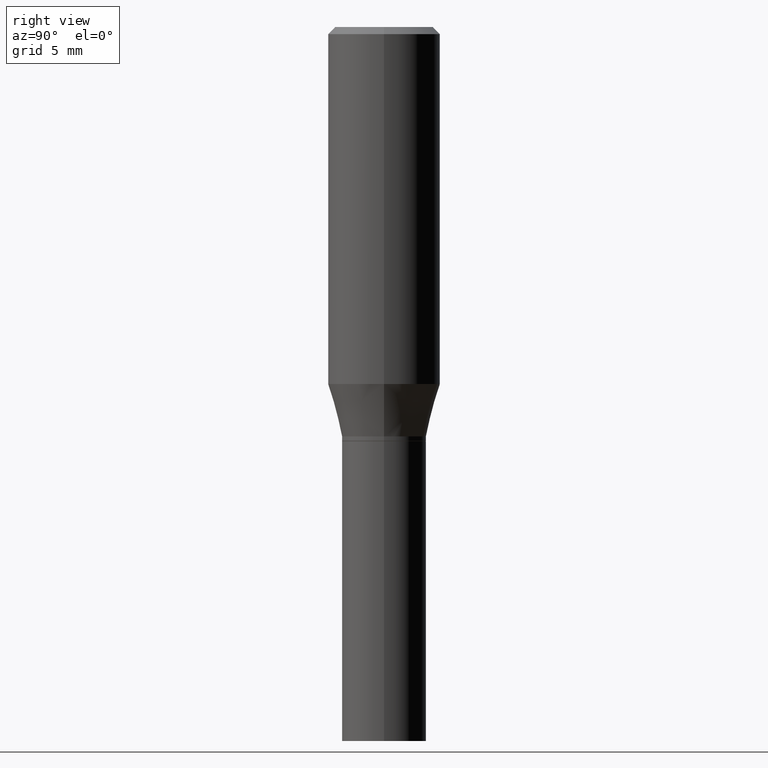
[diagram: clean part render]
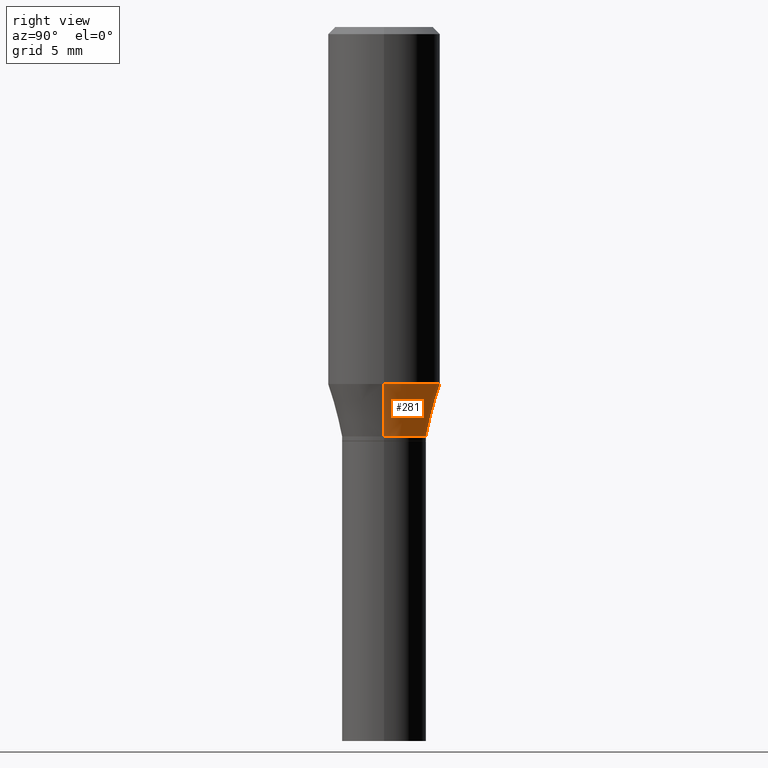
[diagram: same view with one face highlighted and labeled with its STEP entity id]
A machine part, right view. The second image highlights one B-rep face of the part: STEP entity #281.
In plain terms, the highlighted conical surface has half-angle 15 deg.
Its self-contained STEP definition (entity closure, byte-faithful):
#4 = VERTEX_POINT ( 'NONE', #367 ) ;
#5 = DIRECTION ( 'NONE',  ( 1.000000000000000000, -6.982962677686266711E-15, 0.000000000000000000 ) ) ;
#43 = ORIENTED_EDGE ( 'NONE', *, *, #138, .F. ) ;
#66 = FACE_OUTER_BOUND ( 'NONE', #218, .T. ) ;
#74 = VERTEX_POINT ( 'NONE', #80 ) ;
#80 = CARTESIAN_POINT ( 'NONE',  ( 0.1180999999999999966, -3.443314612141622358E-15, -0.7500045011767182412 ) ) ;
#120 = EDGE_CURVE ( 'NONE', #74, #4, #168, .T. ) ;
#136 = LINE ( 'NONE', #346, #317 ) ;
#138 = EDGE_CURVE ( 'NONE', #274, #74, #136, .T. ) ;
#148 = LINE ( 'NONE', #460, #190 ) ;
#157 = AXIS2_PLACEMENT_3D ( 'NONE', #450, #205, #206 ) ;
#168 = CIRCLE ( 'NONE', #157, 0.1180999999999999966 ) ;
#176 = CONICAL_SURFACE ( 'NONE', #232, 0.08859999999999995657, 0.2617993877991496854 ) ;
#187 = CARTESIAN_POINT ( 'NONE',  ( 2.103347720199836549E-29, -3.003023099538990346E-15, -0.8601000000000001977 ) ) ;
#190 = VECTOR ( 'NONE', #294, 39.37007874015748143 ) ;
#200 = ORIENTED_EDGE ( 'NONE', *, *, #441, .T. ) ;
#205 = DIRECTION ( 'NONE',  ( -2.445468806185136597E-29, 3.491481338843145583E-15, 1.000000000000000000 ) ) ;
#206 = DIRECTION ( 'NONE',  ( 1.000000000000000000, -6.982962677686265133E-15, 0.000000000000000000 ) ) ;
#210 = AXIS2_PLACEMENT_3D ( 'NONE', #220, #290, #258 ) ;
#212 = CARTESIAN_POINT ( 'NONE',  ( -0.08859999999999995657, -2.076478992314868500E-15, -0.8601000000000001977 ) ) ;
#218 = EDGE_LOOP ( 'NONE', ( #200, #361, #297, #43 ) ) ;
#220 = CARTESIAN_POINT ( 'NONE',  ( 2.103347720199836549E-29, -3.003023099538990346E-15, -0.8601000000000001977 ) ) ;
#232 = AXIS2_PLACEMENT_3D ( 'NONE', #187, #365, #5 ) ;
#246 = DIRECTION ( 'NONE',  ( 0.2588190451025210170, 1.565188264969624531E-15, 0.9659258262890682012 ) ) ;
#258 = DIRECTION ( 'NONE',  ( 1.000000000000000000, -6.982962677686266711E-15, 0.000000000000000000 ) ) ;
#268 = VERTEX_POINT ( 'NONE', #212 ) ;
#274 = VERTEX_POINT ( 'NONE', #363 ) ;
#281 = ADVANCED_FACE ( 'NONE', ( #66 ), #176, .T. ) ;
#290 = DIRECTION ( 'NONE',  ( -2.445468806185136597E-29, 3.491481338843145583E-15, 1.000000000000000000 ) ) ;
#294 = DIRECTION ( 'NONE',  ( -0.2588190451025210170, 5.211531920934547886E-15, 0.9659258262890682012 ) ) ;
#297 = ORIENTED_EDGE ( 'NONE', *, *, #120, .F. ) ;
#317 = VECTOR ( 'NONE', #246, 39.37007874015748143 ) ;
#346 = CARTESIAN_POINT ( 'NONE',  ( 0.08859999999999995657, -3.621713592781993299E-15, -0.8601000000000001977 ) ) ;
#358 = CIRCLE ( 'NONE', #210, 0.08859999999999995657 ) ;
#361 = ORIENTED_EDGE ( 'NONE', *, *, #372, .T. ) ;
#363 = CARTESIAN_POINT ( 'NONE',  ( 0.08859999999999995657, -3.621713592781993299E-15, -0.8601000000000001977 ) ) ;
#365 = DIRECTION ( 'NONE',  ( -2.445468806185136597E-29, 3.491481338843145583E-15, 1.000000000000000000 ) ) ;
#367 = CARTESIAN_POINT ( 'NONE',  ( -0.1180999999999999966, -1.779475748974195504E-15, -0.7500045011767182412 ) ) ;
#372 = EDGE_CURVE ( 'NONE', #268, #4, #148, .T. ) ;
#441 = EDGE_CURVE ( 'NONE', #274, #268, #358, .T. ) ;
#450 = CARTESIAN_POINT ( 'NONE',  ( 1.834112612126108016E-29, -2.618626719906874095E-15, -0.7500045011767182412 ) ) ;
#460 = CARTESIAN_POINT ( 'NONE',  ( -0.08859999999999995657, -2.373482235655541495E-15, -0.8601000000000001977 ) ) ;